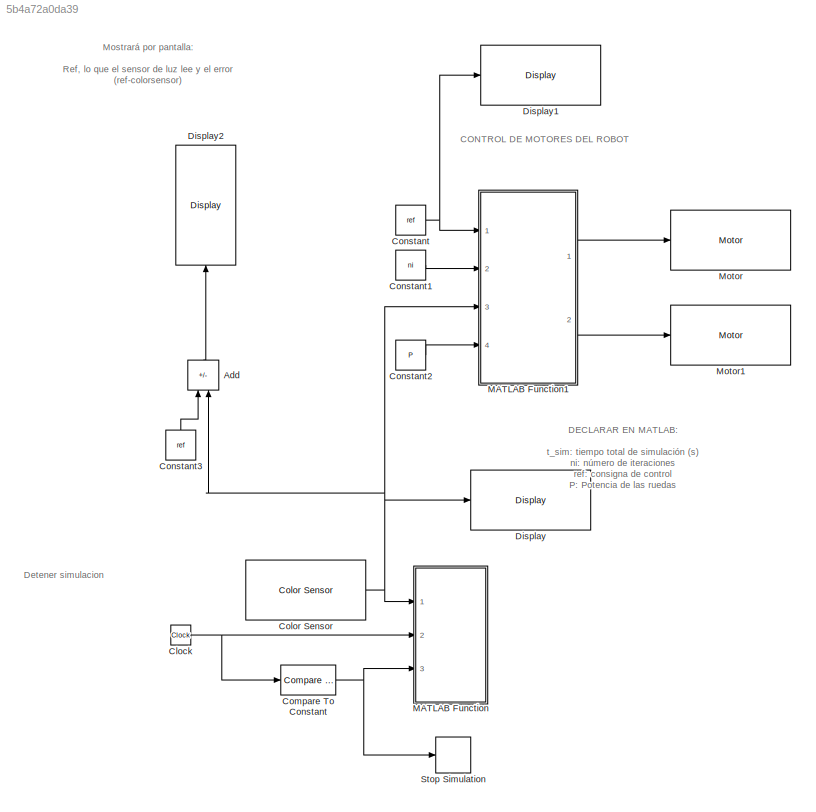
MODEL slx_5b4a72a0da39
KIND model
CONFIG AbsTol = auto
CONFIG EnableMultiTasking = on
CONFIG FixedStep = auto
CONFIG MaxStep = auto
CONFIG MinStep = auto
CONFIG RelTol = 1e-3
CONFIG SampleTimeConstraint = Unconstrained
CONFIG SolverName = FixedStepAuto
CONFIG StartTime = 0.0
CONFIG StopTime = 10.0
BLOCK [Sum] Add
  IconShape = rectangular
  Inputs = +-
  NameLocation = right
  Ports = [2, 1]
BLOCK [Clock] Clock
BLOCK [Reference] Color Sensor  REF=legoev3lib/Color Sensor
  Ports = [0, 1]
  SourceBlock = legoev3lib/Color Sensor
  SourceProductBaseCode = LEGOEV3
  SourceType = LEGO MINDSTORMS EV3 Color Sensor
BLOCK [Reference] Compare To Constant  REF=simulink/Logic and Bit
Operations/Compare
To Constant
  Ports = [1, 1]
  SourceBlock = simulink/Logic and Bit\nOperations/Compare\nTo Constant
  SourceProductBaseCode = SL
  SourceType = Compare To Constant
BLOCK [Constant] Constant
  Value = ref
BLOCK [Constant] Constant1
  Value = ni
BLOCK [Constant] Constant2
  Value = P
BLOCK [Constant] Constant3
  NameLocation = right
  Value = ref
BLOCK [Reference] Display  REF=legoev3lib/Display
  Ports = [1]
  SourceBlock = legoev3lib/Display
  SourceProductBaseCode = LEGOEV3
  SourceType = LEGO MINDSTORMS EV3 Display
BLOCK [Reference] Display1  REF=legoev3lib/Display
  Ports = [1]
  SourceBlock = legoev3lib/Display
  SourceProductBaseCode = LEGOEV3
  SourceType = LEGO MINDSTORMS EV3 Display
BLOCK [Reference] Display2  REF=legoev3lib/Display
  NameLocation = right
  Ports = [1]
  SourceBlock = legoev3lib/Display
  SourceProductBaseCode = LEGOEV3
  SourceType = LEGO MINDSTORMS EV3 Display
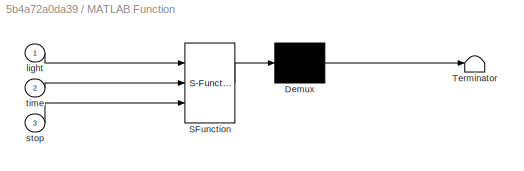
BLOCK [SubSystem] MATLAB Function
  ErrorFcn = Stateflow.Translate.translate
  PermitHierarchicalResolution = ExplicitOnly
  Ports = [3]
  RequestExecContextInheritance = off
  SFBlockType = MATLAB Function
  TreatAsAtomicUnit = on
BLOCK [Demux] MATLAB Function/ Demux 
  Outputs = 1
  Ports = [1, 1]
BLOCK [S-Function] MATLAB Function/ SFunction 
  EnableBusSupport = off
  FunctionName = sf_sfun
  PortCounts = [3 1]
  Ports = [3, 1]
  SFcnIsStateOwnerBlock = off
  SFunctionDeploymentMode = off
  Tag = Stateflow S-Function 2
BLOCK [Terminator] MATLAB Function/ Terminator 
BLOCK [Inport] MATLAB Function/light
BLOCK [Inport] MATLAB Function/stop
  Port = 3
BLOCK [Inport] MATLAB Function/time
  Port = 2
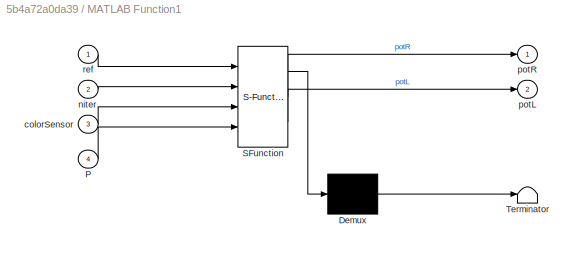
BLOCK [SubSystem] MATLAB Function1
  ErrorFcn = Stateflow.Translate.translate
  PermitHierarchicalResolution = ExplicitOnly
  Ports = [4, 2]
  RequestExecContextInheritance = off
  SFBlockType = MATLAB Function
  TreatAsAtomicUnit = on
BLOCK [Demux] MATLAB Function1/ Demux 
  Outputs = 1
  Ports = [1, 1]
BLOCK [S-Function] MATLAB Function1/ SFunction 
  EnableBusSupport = off
  FunctionName = sf_sfun
  PortCounts = [4 3]
  Ports = [4, 3]
  SFcnIsStateOwnerBlock = off
  SFunctionDeploymentMode = off
  Tag = Stateflow S-Function 1
BLOCK [Terminator] MATLAB Function1/ Terminator 
BLOCK [Inport] MATLAB Function1/P
  Port = 4
BLOCK [Inport] MATLAB Function1/colorSensor
  Port = 3
BLOCK [Inport] MATLAB Function1/niter
  Port = 2
BLOCK [Outport] MATLAB Function1/potL
  Port = 2
BLOCK [Outport] MATLAB Function1/potR
BLOCK [Inport] MATLAB Function1/ref
BLOCK [Reference] Motor  REF=legoev3lib/Motor
  Ports = [1]
  SourceBlock = legoev3lib/Motor
  SourceProductBaseCode = LEGOEV3
  SourceType = LEGO MINDSTORMS EV3 Motor
BLOCK [Reference] Motor1  REF=legoev3lib/Motor
  Ports = [1]
  SourceBlock = legoev3lib/Motor
  SourceProductBaseCode = LEGOEV3
  SourceType = LEGO MINDSTORMS EV3 Motor
BLOCK [Stop] Stop Simulation
ANNOTATION (root): Detener simulacion
ANNOTATION (root): CONTROL DE MOTORES DEL ROBOT
ANNOTATION (root): DECLARAR EN MATLAB: t_sim: tiempo total de simulación (s) ni: número de iteraciones ref: consigna de control P: Potencia de las ruedas
ANNOTATION (root): Mostrará por pantalla: Ref, lo que el sensor de luz lee y el error (ref-colorsensor)
LINE Add:1 -> Display2:1
NET Clock:1 -> Compare To Constant:1, MATLAB Function:2
NET Color Sensor:1 -> Add:2, Display:1, MATLAB Function1:3, MATLAB Function:1
NET Compare To Constant:1 -> MATLAB Function:3, Stop Simulation:1
LINE Constant1:1 -> MATLAB Function1:2
LINE Constant2:1 -> MATLAB Function1:4
LINE Constant3:1 -> Add:1
NET Constant:1 -> Display1:1, MATLAB Function1:1
LINE MATLAB Function1:1 -> Motor:1
LINE MATLAB Function1:2 -> Motor1:1
note: NET lines group one-source signal fan-out (src -> all destinations, sorted); 1:1 wires keep LINE
CHART MATLAB Function1 states=1 transitions=1
  STATE_LABEL 'eML_blk_kernel()'
  STATE_LABEL 'SCRIPT:\nfunction [potR,potL]    = fcn(ref,niter,colorSensor,P)\n    persistent iter;\n    \n    if (isempty(iter))\n        iter = 0;\n    end\n    \n    iter = iter +1;\n    colorSensor = int32(colorSensor);\n    \n    if(iter <= niter)\n    %Calculo del error\n\n         err = ref-colorSensor;\n        \n        %Capa la potencia de cada rueda. error debería de acercarse lo\n        %máximo posible a 0, que es ...<+437ch>'
CHART MATLAB Function states=1 transitions=1
  STATE_LABEL 'eML_blk_kernel()'
  STATE_LABEL "SCRIPT:\nfunction fcn(light, time, stop)\n\npersistent myFile;\n\nif (isempty(myFile))\n    myFile = fopen('D:\\mylog.txt','w');\nend\n\nif (myFile >= 0)\n    if (stop > 0)\n        fclose(myFile);\n        myFile = -1;\n    else\n        fprintf(myFile, '%f\\t%i\\n', time, int32(light));\n    end\nend\n"
CHART  states=0 transitions=0
CHART  states=0 transitions=0
